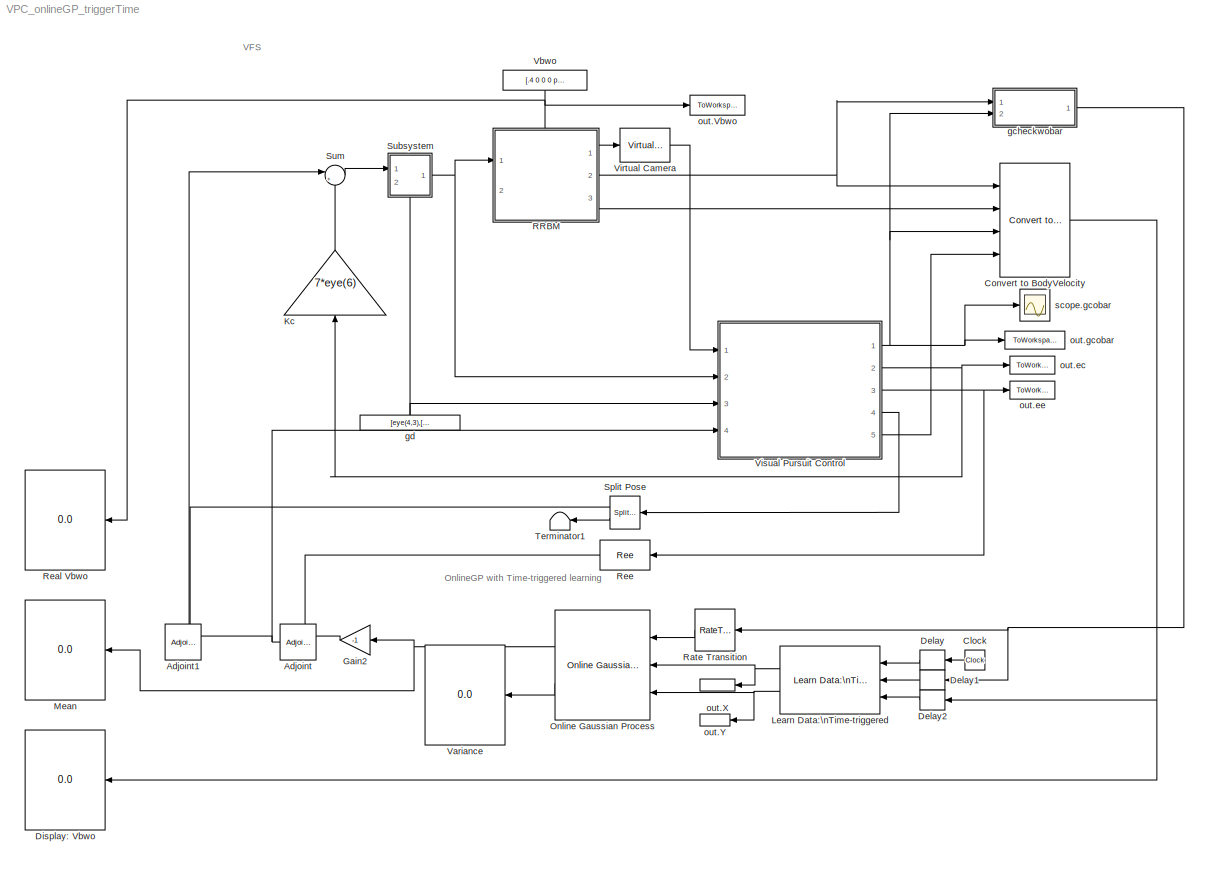
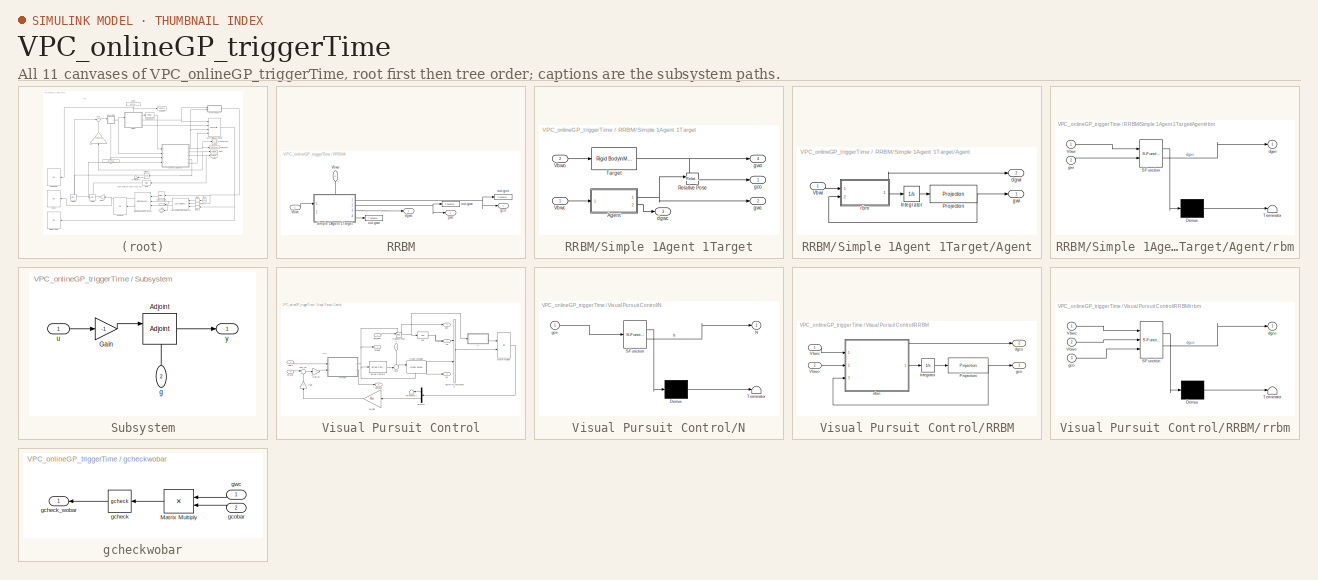
[diagram: thumbnail index - all 11 canvases of the model, root first then tree order]
MODEL VPC_onlineGP_triggerTime
KIND model
BLOCK [Reference] Adjoint  REF=simlib_vpc_basic/Adjoint
  Ports = [2, 1]
  RTWMemSecDataConstants = Inherit from model
  RTWMemSecDataInternal = Inherit from model
  RTWMemSecDataParameters = Inherit from model
  RTWMemSecFuncExecute = Inherit from model
  RTWMemSecFuncInitTerm = Inherit from model
  SID = 80
  SourceBlock = simlib_vpc_basic/Adjoint
  SourceProductName = VPC Library
  SourceType = Adjoint Matrix [V1]
  adjointtype = orientation
BLOCK [Reference] Adjoint1  REF=simlib_vpc_basic/Adjoint
  Ports = [2, 1]
  RTWMemSecDataConstants = Inherit from model
  RTWMemSecDataInternal = Inherit from model
  RTWMemSecDataParameters = Inherit from model
  RTWMemSecFuncExecute = Inherit from model
  RTWMemSecFuncInitTerm = Inherit from model
  SID = 93
  SourceBlock = simlib_vpc_basic/Adjoint
  SourceProductName = VPC Library
  SourceType = Adjoint Matrix [V1]
  adjointtype = orientation
BLOCK [Clock] Clock
  NameLocation = top
  SID = 122
BLOCK [Reference] Convert to BodyVelocity  REF=simlib_vpc_coremath/Convert to BodyVelocity
  Ports = [4, 1]
  RTWMemSecDataConstants = Inherit from model
  RTWMemSecDataInternal = Inherit from model
  RTWMemSecDataParameters = Inherit from model
  RTWMemSecFuncExecute = Inherit from model
  RTWMemSecFuncInitTerm = Inherit from model
  SID = 121
  SourceBlock = simlib_vpc_coremath/Convert to BodyVelocity
  SourceProductName = VPC Library
  SourceType = Convert to Body Velocity [V1]
BLOCK [Delay] Delay
  DelayLength = 1
  InputPortMap = u0
  NameLocation = top
  Ports = [1, 1]
  SID = 123
BLOCK [Delay] Delay1
  DelayLength = 1
  InitialCondition = zeros(6,1)
  InputPortMap = u0
  NameLocation = top
  Ports = [1, 1]
  SID = 124
BLOCK [Delay] Delay2
  DelayLength = 1
  InitialCondition = zeros(6,1)
  InputPortMap = u0
  NameLocation = top
  Ports = [1, 1]
  SID = 125
BLOCK [Display] Display: Vbwo
  Decimation = 1
  Ports = [1]
  SID = 134
BLOCK [Gain] Gain2
  Gain = -1
  NameLocation = top
  SID = 92
BLOCK [Gain] Kc
  Gain = 7*eye(6)
  Multiplication = Matrix(K*u) (u vector)
  NameLocation = left
  SID = 54
BLOCK [Reference] Learn Data:\nTime-triggered  REF=simlib_vpc_gp/Learn Data:\nTime-triggered
  M = 10
  Ports = [3, 2]
  RTWMemSecDataConstants = Inherit from model
  RTWMemSecDataInternal = Inherit from model
  RTWMemSecDataParameters = Inherit from model
  RTWMemSecFuncExecute = Inherit from model
  RTWMemSecFuncInitTerm = Inherit from model
  SID = 126
  SourceBlock = simlib_vpc_gp/Learn Data:\nTime-triggered
  SourceProductName = VPC Library
  SourceType = Time-triggered Learning [V1]
  T = 1
  forget_type = oldest
  ts = 0.01
BLOCK [Display] Mean
  Decimation = 1
  Ports = [1]
  SID = 135
BLOCK [Reference] Online Gaussian Process  REF=simlib_vpc_gp/Online Gaussian Process
  Ports = [3, 2]
  RTWMemSecDataConstants = Inherit from model
  RTWMemSecDataInternal = Inherit from model
  RTWMemSecDataParameters = Inherit from model
  RTWMemSecFuncExecute = Inherit from model
  RTWMemSecFuncInitTerm = Inherit from model
  SID = 127
  SourceBlock = simlib_vpc_gp/Online Gaussian Process
  SourceProductName = VPC Library
  SourceType = Online Gaussian Process [V1]
  hyp = [5811173401.07743,21588555449944.6,1,8110042.13413100,7904.61094638263,7904.61094640294,0.200026025926779;60.7489924638542,524.808810512054,1,1.61563170712922,1.71239559901261,1.71239559901241,5.61320776710465e-12;1489.26961783243,49.4500876144320,1,0.324984946298690,0.226613543570055,0.226613543570214,1.82535781762732e-12;0.155449650516185,65.1816809298117,1,38.3822907611281,127.663031081991,127....<+248ch>
  hyp_source = internal
  kernel = Squared Exponential ARD
  sn = 1e-2.*ones(6,1)
  sn_source = internal
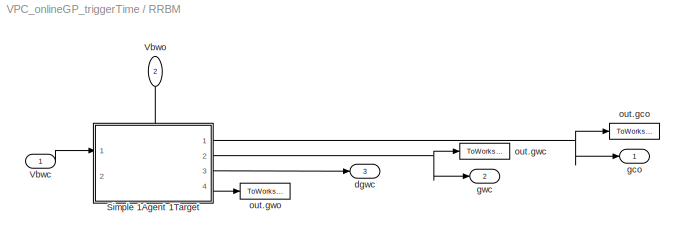
BLOCK [SubSystem] RRBM
  PortSchema = {\"entries\":[{\"content\":{\"sides\":[{\"content\":{\"connectorIds\":[\"In1\"]},\"type\":\"ConnectorPlacement.EquallySpacedRectSide\",\"uuid\":\"ce1006a6-ff18-4db7-ad69-3a60144a672f\"},{\"content\":{\"connectorIds\":[\"Out1\",\"Out2\",\"Out3\"],\"side\":\"RIGHT\"},\"type\":\"ConnectorPlacement.EquallySpacedRectSide\",\"uuid\":\"9f6b7cf2-eb23-4db0-862a-f9244538bf77\"},{\"content\":{\"connectorIds\...<+495ch>
  Ports = [2, 3]
  RequestExecContextInheritance = off
  SID = 71
BLOCK [SubSystem] RRBM/Simple 1Agent 1Target
  MinAlgLoopOccurrences = on
  PortSchema = {\"entries\":[{\"content\":{\"sides\":[{\"content\":{\"connectorIds\":[\"In1\"]},\"type\":\"ConnectorPlacement.EquallySpacedRectSide\",\"uuid\":\"51848c78-49bf-4d69-8138-12848c04a52b\"},{\"content\":{\"connectorIds\":[\"Out1\",\"Out2\",\"Out3\",\"Out4\"],\"side\":\"RIGHT\"},\"type\":\"ConnectorPlacement.EquallySpacedRectSide\",\"uuid\":\"a2771237-d1b3-407b-8d53-6a34779e1c0e\"},{\"content\":{\"conn...<+504ch>
  Ports = [2, 4]
  RTWSystemCode = Reusable function
  RequestExecContextInheritance = off
  SID = 74
BLOCK [SubSystem] RRBM/Simple 1Agent 1Target/Agent
  MinAlgLoopOccurrences = on
  Ports = [1, 2]
  RTWSystemCode = Reusable function
  RequestExecContextInheritance = off
  SID = 74:88
BLOCK [Integrator] RRBM/Simple 1Agent 1Target/Agent/Integrator
  ContinuousStateAttributes = 'pose'
  InitialCondition = g0
  Ports = [1, 1]
  SID = 74:88:34
BLOCK [Reference] RRBM/Simple 1Agent 1Target/Agent/Projection  REF=simlib_vpc_basic/Projection
  Ports = [1, 1]
  RTWMemSecDataConstants = Inherit from model
  RTWMemSecDataInternal = Inherit from model
  RTWMemSecDataParameters = Inherit from model
  RTWMemSecFuncExecute = Inherit from model
  RTWMemSecFuncInitTerm = Inherit from model
  SID = 74:88:66
  SourceBlock = simlib_vpc_basic/Projection
  SourceProductName = VPC Library
  SourceType = Rotation Projection [V1]
  inputtype = pose
  projectiontype = averaging
BLOCK [Inport] RRBM/Simple 1Agent 1Target/Agent/Vbwi
  SID = 74:88:31
BLOCK [Outport] RRBM/Simple 1Agent 1Target/Agent/dgwi
  Port = 2
  SID = 74:88:70
BLOCK [Outport] RRBM/Simple 1Agent 1Target/Agent/gwi
  SID = 74:88:32
BLOCK [SubSystem] RRBM/Simple 1Agent 1Target/Agent/rbm
  ErrorFcn = Stateflow.Translate.translate
  PermitHierarchicalResolution = ExplicitOnly
  Ports = [2, 1]
  RequestExecContextInheritance = off
  SFBlockType = MATLAB Function
  SID = 74:88:35
  TreatAsAtomicUnit = on
BLOCK [Demux] RRBM/Simple 1Agent 1Target/Agent/rbm/ Demux 
  Outputs = 1
  Ports = [1, 1]
  SID = 74:88:35::27
BLOCK [S-Function] RRBM/Simple 1Agent 1Target/Agent/rbm/ SFunction 
  EnableBusSupport = on
  FunctionName = sf_sfun
  PortCounts = [2 2]
  Ports = [2, 2]
  SFcnIsStateOwnerBlock = off
  SFunctionDeploymentMode = off
  SID = 74:88:35::26
  Tag = Stateflow S-Function 4
BLOCK [Terminator] RRBM/Simple 1Agent 1Target/Agent/rbm/ Terminator 
  SID = 74:88:35::28
BLOCK [Inport] RRBM/Simple 1Agent 1Target/Agent/rbm/Vbwi
  SID = 74:88:35::1
BLOCK [Outport] RRBM/Simple 1Agent 1Target/Agent/rbm/dgwi
  SID = 74:88:35::5
BLOCK [Inport] RRBM/Simple 1Agent 1Target/Agent/rbm/gwi
  Port = 2
  SID = 74:88:35::22
BLOCK [Reference] RRBM/Simple 1Agent 1Target/Relative Pose  REF=simlib_vpc_coremath/Relative Pose
  Ports = [2, 1]
  RTWMemSecDataConstants = Inherit from model
  RTWMemSecDataInternal = Inherit from model
  RTWMemSecDataParameters = Inherit from model
  RTWMemSecFuncExecute = Inherit from model
  RTWMemSecFuncInitTerm = Inherit from model
  SID = 74:89
  SourceBlock = simlib_vpc_coremath/Relative Pose
  SourceProductName = VPC Library
  SourceType = Relative Pose Block [V1]
BLOCK [Reference] RRBM/Simple 1Agent 1Target/Target  REF=simlib_vpc_basic/Rigid Body\nMotion
  Ports = [1, 1]
  RTWMemSecDataConstants = Inherit from model
  RTWMemSecDataInternal = Inherit from model
  RTWMemSecDataParameters = Inherit from model
  RTWMemSecFuncExecute = Inherit from model
  RTWMemSecFuncInitTerm = Inherit from model
  SID = 74:90
  SourceBlock = simlib_vpc_basic/Rigid Body\nMotion
  SourceProductName = VPC Library
  SourceType = Rigid Body Motion Block [V1]
  agentnumber = 1
  g0 = gwo0
  projection = on
  rbmtype = target
  show_dg = off
BLOCK [Inport] RRBM/Simple 1Agent 1Target/Vbwc
  SID = 74:86
BLOCK [Inport] RRBM/Simple 1Agent 1Target/Vbwo
  Port = 2
  SID = 74:87
BLOCK [Outport] RRBM/Simple 1Agent 1Target/dgwc
  Port = 3
  SID = 74:114
BLOCK [Outport] RRBM/Simple 1Agent 1Target/gco
  SID = 74:91
BLOCK [Outport] RRBM/Simple 1Agent 1Target/gwc
  Port = 2
  SID = 74:108
BLOCK [Outport] RRBM/Simple 1Agent 1Target/gwo
  Port = 4
  SID = 74:109
BLOCK [Inport] RRBM/Vbwc
  SID = 72
BLOCK [Inport] RRBM/Vbwo
  NameLocation = left
  Port = 2
  SID = 73
BLOCK [Outport] RRBM/dgwc
  NameLocation = right
  Port = 3
  SID = 120
BLOCK [Outport] RRBM/gco
  NameLocation = right
  SID = 78
BLOCK [Outport] RRBM/gwc
  NameLocation = right
  Port = 2
  SID = 79
BLOCK [ToWorkspace] RRBM/out.gco
  FixptAsFi = on
  MaxDataPoints = inf
  NameLocation = right
  Ports = [1]
  SID = 75
  SampleTime = -1
  SaveFormat = Structure With Time
  VariableName = gco
BLOCK [ToWorkspace] RRBM/out.gwc
  FixptAsFi = on
  MaxDataPoints = inf
  NameLocation = right
  Ports = [1]
  SID = 76
  SampleTime = -1
  SaveFormat = Structure With Time
  VariableName = gwc
BLOCK [ToWorkspace] RRBM/out.gwo
  FixptAsFi = on
  MaxDataPoints = inf
  NameLocation = right
  Ports = [1]
  SID = 77
  SampleTime = -1
  SaveFormat = Structure With Time
  VariableName = gwo
BLOCK [RateTransition] Rate Transition
  NameLocation = top
  OutPortSampleTime = 0.01
  SID = 128
BLOCK [Display] Real Vbwo
  Decimation = 1
  Ports = [1]
  SID = 136
BLOCK [Reference] Ree  REF=simlib_vpc_coremath/Ree
  NameLocation = top
  Ports = [1, 1]
  RTWMemSecDataConstants = Inherit from model
  RTWMemSecDataInternal = Inherit from model
  RTWMemSecDataParameters = Inherit from model
  RTWMemSecFuncExecute = Inherit from model
  RTWMemSecFuncInitTerm = Inherit from model
  SID = 81
  SourceBlock = simlib_vpc_coremath/Ree
  SourceProductName = VPC Library
  SourceType = Rotation Estimation Error [V1]
BLOCK [Reference] Split Pose  REF=simlib_vpc_coremath/Split Pose
  NameLocation = top
  Ports = [1, 2]
  RTWMemSecDataConstants = Inherit from model
  RTWMemSecDataInternal = Inherit from model
  RTWMemSecDataParameters = Inherit from model
  RTWMemSecFuncExecute = Inherit from model
  RTWMemSecFuncInitTerm = Inherit from model
  SID = 98
  SourceBlock = simlib_vpc_coremath/Split Pose
  SourceProductName = VPC Library
  SourceType = Split pose [V1]
BLOCK [SubSystem] Subsystem
  PortSchema = {\"entries\":[{\"content\":{\"sides\":[{\"content\":{\"connectorIds\":[\"In1\"]},\"type\":\"ConnectorPlacement.EquallySpacedRectSide\",\"uuid\":\"72e68008-5c4a-43a9-a560-64c6a31a0c08\"},{\"content\":{\"connectorIds\":[\"Out1\"],\"side\":\"RIGHT\"},\"type\":\"ConnectorPlacement.EquallySpacedRectSide\",\"uuid\":\"da07f5ff-2b2c-4c55-a2f2-34e133777503\"},{\"content\":{\"connectorIds\":[],\"side\":\"TO...<+637ch>
  Ports = [2, 1]
  RequestExecContextInheritance = off
  SID = 65
BLOCK [Reference] Subsystem/Adjoint  REF=simlib_vpc_basic/Adjoint
  NameLocation = top
  Ports = [2, 1]
  RTWMemSecDataConstants = Inherit from model
  RTWMemSecDataInternal = Inherit from model
  RTWMemSecDataParameters = Inherit from model
  RTWMemSecFuncExecute = Inherit from model
  RTWMemSecFuncInitTerm = Inherit from model
  SID = 41
  SourceBlock = simlib_vpc_basic/Adjoint
  SourceProductName = VPC Library
  SourceType = Adjoint Matrix [V1]
  adjointtype = pose
BLOCK [Gain] Subsystem/Gain
  Gain = -1
  SID = 42
BLOCK [Inport] Subsystem/g
  NameLocation = right
  Port = 2
  SID = 67
BLOCK [Inport] Subsystem/u
  SID = 66
BLOCK [Outport] Subsystem/y
  SID = 68
BLOCK [Sum] Sum
  Inputs = |+-
  Ports = [2, 1]
  SID = 94
BLOCK [Terminator] Terminator1
  SID = 99
BLOCK [Display] Variance
  Decimation = 1
  Ports = [1]
  SID = 133
BLOCK [Constant] Vbwo
  NameLocation = right
  SID = 18
  Value = [.4 0 0 0 pi/6 0]
BLOCK [Reference] Virtual Camera  REF=simlib_vpc_basic/Virtual Camera
  NameLocation = top
  Ports = [1, 1]
  RTWMemSecDataConstants = Inherit from model
  RTWMemSecDataInternal = Inherit from model
  RTWMemSecDataParameters = Inherit from model
  RTWMemSecFuncExecute = Inherit from model
  RTWMemSecFuncInitTerm = Inherit from model
  SID = 56
  SourceBlock = simlib_vpc_basic/Virtual Camera
  SourceProductName = VPC Library
  SourceType = Virtual Camera model [V1]
  camtype = Pinhole
  lambda = lambda
  po = po
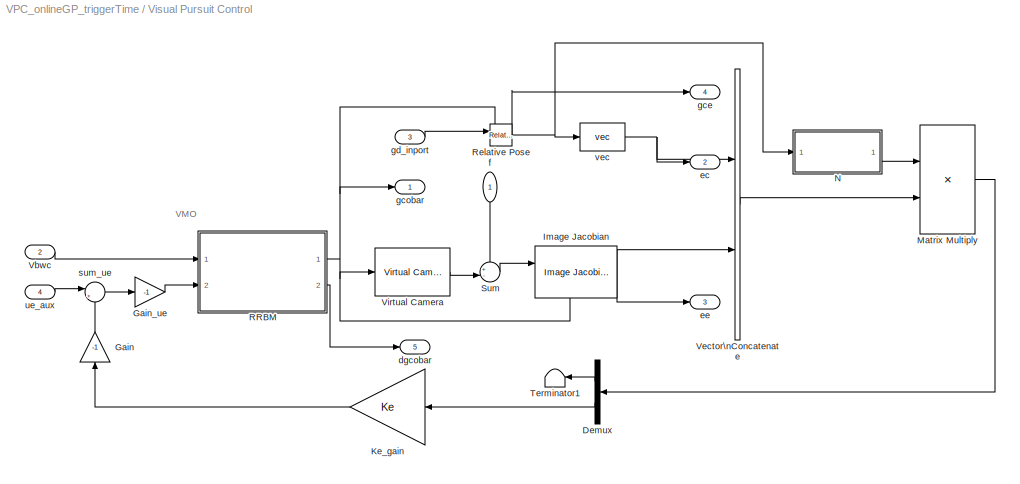
BLOCK [SubSystem] Visual Pursuit Control
  MinAlgLoopOccurrences = on
  Ports = [4, 5]
  RTWSystemCode = Reusable function
  RequestExecContextInheritance = off
  SID = 59
BLOCK [Demux] Visual Pursuit Control/Demux
  NameLocation = top
  Outputs = 2
  Ports = [1, 2]
  SID = 59:433
BLOCK [Gain] Visual Pursuit Control/Gain
  Gain = -1
  NameLocation = right
  SID = 59:188
BLOCK [Gain] Visual Pursuit Control/Gain_ue
  Gain = -1
  SID = 59:420
BLOCK [Reference] Visual Pursuit Control/Image Jacobian  REF=simlib_vpc_basic/Image Jacobian
  NameLocation = top
  Ports = [2, 1]
  RTWMemSecDataConstants = Inherit from model
  RTWMemSecDataInternal = Inherit from model
  RTWMemSecDataParameters = Inherit from model
  RTWMemSecFuncExecute = Inherit from model
  RTWMemSecFuncInitTerm = Inherit from model
  SID = 59:421
  SourceBlock = simlib_vpc_basic/Image Jacobian
  SourceProductName = VPC Library
  SourceType = Image Jacobian [V1]
  lambda = lambda
  po = fo
BLOCK [Gain] Visual Pursuit Control/Ke_gain
  Gain = Ke
  Multiplication = Matrix(K*u) (u vector)
  SID = 59:538
BLOCK [Product] Visual Pursuit Control/Matrix Multiply
  Multiplication = Matrix(*)
  Ports = [2, 1]
  SID = 59:166
BLOCK [SubSystem] Visual Pursuit Control/N
  ErrorFcn = Stateflow.Translate.translate
  PermitHierarchicalResolution = ExplicitOnly
  Ports = [1, 1]
  RequestExecContextInheritance = off
  SFBlockType = MATLAB Function
  SID = 59:169
  TreatAsAtomicUnit = on
BLOCK [Demux] Visual Pursuit Control/N/ Demux 
  Outputs = 1
  Ports = [1, 1]
  SID = 59:169::30
BLOCK [S-Function] Visual Pursuit Control/N/ SFunction 
  EnableBusSupport = on
  FunctionName = sf_sfun
  PortCounts = [1 2]
  Ports = [1, 2]
  SFcnIsStateOwnerBlock = off
  SFunctionDeploymentMode = off
  SID = 59:169::29
  Tag = Stateflow S-Function 8
BLOCK [Terminator] Visual Pursuit Control/N/ Terminator 
  SID = 59:169::31
BLOCK [Outport] Visual Pursuit Control/N/N
  SID = 59:169::5
BLOCK [Inport] Visual Pursuit Control/N/gce
  SID = 59:169::1
BLOCK [SubSystem] Visual Pursuit Control/RRBM
  MinAlgLoopOccurrences = on
  Ports = [2, 2]
  RTWSystemCode = Reusable function
  RequestExecContextInheritance = off
  SID = 59:428
BLOCK [Integrator] Visual Pursuit Control/RRBM/Integrator
  InitialCondition = gco0
  Ports = [1, 1]
  SID = 59:428:78
BLOCK [Reference] Visual Pursuit Control/RRBM/Projection  REF=simlib_vpc_basic/Projection
  Ports = [1, 1]
  RTWMemSecDataConstants = Inherit from model
  RTWMemSecDataInternal = Inherit from model
  RTWMemSecDataParameters = Inherit from model
  RTWMemSecFuncExecute = Inherit from model
  RTWMemSecFuncInitTerm = Inherit from model
  SID = 59:428:82
  SourceBlock = simlib_vpc_basic/Projection
  SourceProductName = VPC Library
  SourceType = Rotation Projection [V1]
  inputtype = pose
  projectiontype = averaging
BLOCK [Inport] Visual Pursuit Control/RRBM/Vbwc
  SID = 59:428:47
BLOCK [Inport] Visual Pursuit Control/RRBM/Vbwo
  Port = 2
  SID = 59:428:49
BLOCK [Outport] Visual Pursuit Control/RRBM/dgco
  Port = 2
  SID = 59:428:89
BLOCK [Outport] Visual Pursuit Control/RRBM/gco
  SID = 59:428:48
BLOCK [SubSystem] Visual Pursuit Control/RRBM/rrbm
  ErrorFcn = Stateflow.Translate.translate
  PermitHierarchicalResolution = ExplicitOnly
  Ports = [3, 1]
  RequestExecContextInheritance = off
  SFBlockType = MATLAB Function
  SID = 59:428:77
  TreatAsAtomicUnit = on
BLOCK [Demux] Visual Pursuit Control/RRBM/rrbm/ Demux 
  Outputs = 1
  Ports = [1, 1]
  SID = 59:428:77::28
BLOCK [S-Function] Visual Pursuit Control/RRBM/rrbm/ SFunction 
  EnableBusSupport = on
  FunctionName = sf_sfun
  PortCounts = [3 2]
  Ports = [3, 2]
  SFcnIsStateOwnerBlock = off
  SFunctionDeploymentMode = off
  SID = 59:428:77::27
  Tag = Stateflow S-Function 7
BLOCK [Terminator] Visual Pursuit Control/RRBM/rrbm/ Terminator 
  SID = 59:428:77::29
BLOCK [Inport] Visual Pursuit Control/RRBM/rrbm/Vbwc
  SID = 59:428:77::22
BLOCK [Inport] Visual Pursuit Control/RRBM/rrbm/Vbwo
  Port = 2
  SID = 59:428:77::1
BLOCK [Outport] Visual Pursuit Control/RRBM/rrbm/dgco
  SID = 59:428:77::5
BLOCK [Inport] Visual Pursuit Control/RRBM/rrbm/gco
  Port = 3
  SID = 59:428:77::23
BLOCK [Reference] Visual Pursuit Control/Relative Pose  REF=simlib_vpc_coremath/Relative Pose
  Ports = [2, 1]
  RTWMemSecDataConstants = Inherit from model
  RTWMemSecDataInternal = Inherit from model
  RTWMemSecDataParameters = Inherit from model
  RTWMemSecFuncExecute = Inherit from model
  RTWMemSecFuncInitTerm = Inherit from model
  SID = 59:163
  SourceBlock = simlib_vpc_coremath/Relative Pose
  SourceProductName = VPC Library
  SourceType = Relative Pose Block [V1]
BLOCK [Sum] Visual Pursuit Control/Sum
  Inputs = +-|
  Ports = [2, 1]
  SID = 59:423
BLOCK [Terminator] Visual Pursuit Control/Terminator1
  NameLocation = top
  SID = 59:434
BLOCK [Inport] Visual Pursuit Control/Vbwc
  Port = 2
  SID = 59:160
BLOCK [Concatenate] Visual Pursuit Control/Vector\nConcatenate
  Ports = [2, 1]
  SID = 59:164
BLOCK [Reference] Visual Pursuit Control/Virtual Camera  REF=simlib_vpc_basic/Virtual Camera
  Ports = [1, 1]
  RTWMemSecDataConstants = Inherit from model
  RTWMemSecDataInternal = Inherit from model
  RTWMemSecDataParameters = Inherit from model
  RTWMemSecFuncExecute = Inherit from model
  RTWMemSecFuncInitTerm = Inherit from model
  SID = 59:430
  SourceBlock = simlib_vpc_basic/Virtual Camera
  SourceProductName = VPC Library
  SourceType = Virtual Camera model [V1]
  camtype = Pinhole
  lambda = lambda
  po = fo
BLOCK [Outport] Visual Pursuit Control/dgcobar
  Port = 5
  SID = 59:558
BLOCK [Outport] Visual Pursuit Control/ec
  Port = 2
  SID = 59:435
BLOCK [Outport] Visual Pursuit Control/ee
  Port = 3
  SID = 59:556
BLOCK [Inport] Visual Pursuit Control/f
  NameLocation = left
  SID = 59:156
BLOCK [Outport] Visual Pursuit Control/gce
  Port = 4
  SID = 59:557
BLOCK [Outport] Visual Pursuit Control/gcobar
  SID = 59:157
BLOCK [Inport] Visual Pursuit Control/gd_inport
  Port = 3
  SID = 59:553
BLOCK [Sum] Visual Pursuit Control/sum_ue
  Inputs = |++
  Ports = [2, 1]
  SID = 59:555
BLOCK [Inport] Visual Pursuit Control/ue_aux
  Port = 4
  SID = 59:554
BLOCK [Reference] Visual Pursuit Control/vec  REF=simlib_vpc_coremath/vec
  Ports = [1, 1]
  RTWMemSecDataConstants = Inherit from model
  RTWMemSecDataInternal = Inherit from model
  RTWMemSecDataParameters = Inherit from model
  RTWMemSecFuncExecute = Inherit from model
  RTWMemSecFuncInitTerm = Inherit from model
  SID = 59:170
  SourceBlock = simlib_vpc_coremath/vec
  SourceProductName = VPC Library
  SourceType = Vec Transform [V1]
BLOCK [SubSystem] gcheckwobar
  Ports = [2, 1]
  RequestExecContextInheritance = off
  SID = 83
BLOCK [Product] gcheckwobar/Matrix Multiply
  Multiplication = Matrix(*)
  NameLocation = top
  Ports = [2, 1]
  SID = 86
BLOCK [Reference] gcheckwobar/gcheck  REF=simlib_vpc_coremath/gcheck
  NameLocation = top
  Ports = [1, 1]
  RTWMemSecDataConstants = Inherit from model
  RTWMemSecDataInternal = Inherit from model
  RTWMemSecDataParameters = Inherit from model
  RTWMemSecFuncExecute = Inherit from model
  RTWMemSecFuncInitTerm = Inherit from model
  SID = 87
  SourceBlock = simlib_vpc_coremath/gcheck
  SourceProductName = VPC Library
  SourceType = Check Transform [V1]
BLOCK [Outport] gcheckwobar/gcheck_wobar
  SID = 88
BLOCK [Inport] gcheckwobar/gcobar
  NameLocation = right
  Port = 2
  SID = 85
BLOCK [Inport] gcheckwobar/gwc
  NameLocation = right
  SID = 84
BLOCK [Constant] gd
  NameLocation = right
  SID = 47
  Value = [eye(4,3),[0 0 2 1]']
BLOCK [ToWorkspace] out.Vbwo
  FixptAsFi = on
  MaxDataPoints = inf
  NameLocation = right
  Ports = [1]
  SID = 102
  SampleTime = -1
  SaveFormat = Structure With Time
  VariableName = Vbwo
BLOCK [ToWorkspace] out.X
  FixptAsFi = on
  MaxDataPoints = inf
  NameLocation = left
  Ports = [1]
  SID = 129
  SampleTime = -1
  SaveFormat = Structure With Time
  VariableName = X
BLOCK [ToWorkspace] out.Y
  FixptAsFi = on
  MaxDataPoints = inf
  NameLocation = left
  Ports = [1]
  SID = 130
  SampleTime = -1
  SaveFormat = Structure With Time
  VariableName = Y
BLOCK [ToWorkspace] out.ec
  FixptAsFi = on
  MaxDataPoints = inf
  NameLocation = right
  Ports = [1]
  SID = 45
  SampleTime = -1
  SaveFormat = Structure With Time
  VariableName = ec
BLOCK [ToWorkspace] out.ee
  FixptAsFi = on
  MaxDataPoints = inf
  NameLocation = right
  Ports = [1]
  SID = 46
  SampleTime = -1
  SaveFormat = Structure With Time
  VariableName = ee
BLOCK [ToWorkspace] out.gcobar
  FixptAsFi = on
  MaxDataPoints = inf
  NameLocation = right
  Ports = [1]
  SID = 31
  SampleTime = -1
  SaveFormat = Structure With Time
  VariableName = gcobar
BLOCK [Scope] scope.gcobar
  Floating = off
  NameLocation = right
  NumInputPorts = 1
  Ports = [1]
  SID = 38
  ScopeSpecificationString = Simulink.scopes.TimeScopeBlockCfg('CurrentConfiguration', extmgr.ConfigurationSet(extmgr.Configuration('Core','General UI',true),extmgr.Configuration('Core','Source UI',true),extmgr.Configuration('Sources','WiredSimulink',true),extmgr.Configuration('Visuals','Time Domain',true,'SerializedDisplays',{struct('MinYLimReal','-0.4173','MaxYLimReal','2.21403','YLabelReal','','MinYLimMag','0.00000','MaxYL...<+1835ch>
ANNOTATION (root): \n \n \n \n \n \n \n \n $\\check{\\bar{g}}_{wo}$ \n \n \n \n
ANNOTATION (root): \n \n \n \n \n \n \n \n Note: \n \n \n \n \n \n Due to how atomic subsystems work, these library links had to be disabled: \n \n \n - VPC block \n \n \n - Agent block within Simple1Agent1Target block \n \n \n \n \n \n The reason is that with showing the derivative \n $\\dot{g}$ \n on the output of these blocks result in an algebraic loop error that Simulink cannot resolve. \n \n \n \n \n \n Howeve...<+249ch>
ANNOTATION (root): \n \n \n \n \n \n \n \n $R_{ce}$ \n \n \n \n
ANNOTATION (root): OnlineGP with Time-triggered learning
ANNOTATION (root): VFS\n
ANNOTATION Visual Pursuit Control: \n \n \n \n \n \n \n \n $\\mathbf{\\nu}$ \n \n \n \n
ANNOTATION Visual Pursuit Control: \n \n \n \n \n \n \n \n $\\mathbf{e}$ \n \n \n \n
ANNOTATION Visual Pursuit Control: \n \n \n \n \n \n \n \n $\\mathbf{e}_c$ \n \n \n \n
ANNOTATION Visual Pursuit Control: \n \n \n \n \n \n \n \n $\\mathbf{e}_e$ \n \n \n \n
ANNOTATION Visual Pursuit Control: \n \n \n \n \n \n \n \n $\\mathbf{g}_{ce}$ \n \n \n \n
ANNOTATION Visual Pursuit Control: VMO
ANNOTATION gcheckwobar: \n \n \n \n \n \n \n \n $\\bar{g}_{wo}$ \n \n \n \n
ANNOTATION gcheckwobar: \n \n \n \n \n \n \n \n $\\check{\\bar{g}}_{wo}$ \n \n \n \n
LINE Adjoint1:1 -> Sum:1
NET Adjoint:1 -> Adjoint1:1, Visual Pursuit Control:4
LINE Clock:1 -> Delay:1
NET Convert to BodyVelocity:1 -> Delay2:1, Display: Vbwo:1
LINE Delay1:1 -> Learn Data:\nTime-triggered:2
LINE Delay2:1 -> Learn Data:\nTime-triggered:3
LINE Delay:1 -> Learn Data:\nTime-triggered:1
LINE Gain2:1 -> Adjoint:1
LINE Kc:1 -> Sum:2
NET Learn Data:\nTime-triggered:1 -> Online Gaussian Process:2, out.X:1
NET Learn Data:\nTime-triggered:2 -> Online Gaussian Process:3, out.Y:1
NET Online Gaussian Process:1 -> Gain2:1, Mean:1
LINE Online Gaussian Process:2 -> Variance:1
LINE RRBM/Simple 1Agent 1Target/Agent/Integrator:1 -> RRBM/Simple 1Agent 1Target/Agent/Projection:1
NET RRBM/Simple 1Agent 1Target/Agent/Projection:1 -> RRBM/Simple 1Agent 1Target/Agent/gwi:1, RRBM/Simple 1Agent 1Target/Agent/rbm:2
LINE RRBM/Simple 1Agent 1Target/Agent/Vbwi:1 -> RRBM/Simple 1Agent 1Target/Agent/rbm:1
LINE RRBM/Simple 1Agent 1Target/Agent/rbm/ Demux :1 -> RRBM/Simple 1Agent 1Target/Agent/rbm/ Terminator :1
LINE RRBM/Simple 1Agent 1Target/Agent/rbm/ SFunction :1 -> RRBM/Simple 1Agent 1Target/Agent/rbm/ Demux :1
LINE RRBM/Simple 1Agent 1Target/Agent/rbm/ SFunction :2 -> RRBM/Simple 1Agent 1Target/Agent/rbm/dgwi:1
LINE RRBM/Simple 1Agent 1Target/Agent/rbm/Vbwi:1 -> RRBM/Simple 1Agent 1Target/Agent/rbm/ SFunction :1
LINE RRBM/Simple 1Agent 1Target/Agent/rbm/gwi:1 -> RRBM/Simple 1Agent 1Target/Agent/rbm/ SFunction :2
NET RRBM/Simple 1Agent 1Target/Agent/rbm:1 -> RRBM/Simple 1Agent 1Target/Agent/Integrator:1, RRBM/Simple 1Agent 1Target/Agent/dgwi:1
NET RRBM/Simple 1Agent 1Target/Agent:1 -> RRBM/Simple 1Agent 1Target/Relative Pose:1, RRBM/Simple 1Agent 1Target/gwc:1
LINE RRBM/Simple 1Agent 1Target/Agent:2 -> RRBM/Simple 1Agent 1Target/dgwc:1
LINE RRBM/Simple 1Agent 1Target/Relative Pose:1 -> RRBM/Simple 1Agent 1Target/gco:1
NET RRBM/Simple 1Agent 1Target/Target:1 -> RRBM/Simple 1Agent 1Target/Relative Pose:2, RRBM/Simple 1Agent 1Target/gwo:1
LINE RRBM/Simple 1Agent 1Target/Vbwc:1 -> RRBM/Simple 1Agent 1Target/Agent:1
LINE RRBM/Simple 1Agent 1Target/Vbwo:1 -> RRBM/Simple 1Agent 1Target/Target:1
NET RRBM/Simple 1Agent 1Target:1 -> RRBM/gco:1, RRBM/out.gco:1
NET RRBM/Simple 1Agent 1Target:2 -> RRBM/gwc:1, RRBM/out.gwc:1
LINE RRBM/Simple 1Agent 1Target:3 -> RRBM/dgwc:1
LINE RRBM/Simple 1Agent 1Target:4 -> RRBM/out.gwo:1
LINE RRBM/Vbwc:1 -> RRBM/Simple 1Agent 1Target:1
LINE RRBM/Vbwo:1 -> RRBM/Simple 1Agent 1Target:2
LINE RRBM:1 -> Virtual Camera:1
NET RRBM:2 -> Convert to BodyVelocity:1, gcheckwobar:1
LINE RRBM:3 -> Convert to BodyVelocity:2
LINE Rate Transition:1 -> Online Gaussian Process:1
LINE Ree:1 -> Adjoint:2
LINE Split Pose:1 -> Adjoint1:2
LINE Split Pose:2 -> Terminator1:1
LINE Subsystem/Adjoint:1 -> Subsystem/y:1
LINE Subsystem/Gain:1 -> Subsystem/Adjoint:1
LINE Subsystem/g:1 -> Subsystem/Adjoint:2
LINE Subsystem/u:1 -> Subsystem/Gain:1
NET Subsystem:1 -> RRBM:1, Visual Pursuit Control:2
LINE Sum:1 -> Subsystem:1
NET Vbwo:1 -> RRBM:2, Real Vbwo:1, out.Vbwo:1
LINE Virtual Camera:1 -> Visual Pursuit Control:1
LINE Visual Pursuit Control/Demux:1 -> Visual Pursuit Control/Terminator1:1
LINE Visual Pursuit Control/Demux:2 -> Visual Pursuit Control/Ke_gain:1
LINE Visual Pursuit Control/Gain:1 -> Visual Pursuit Control/sum_ue:2
LINE Visual Pursuit Control/Gain_ue:1 -> Visual Pursuit Control/RRBM:2
NET Visual Pursuit Control/Image Jacobian:1 -> Visual Pursuit Control/Vector\nConcatenate:2, Visual Pursuit Control/ee:1
LINE Visual Pursuit Control/Ke_gain:1 -> Visual Pursuit Control/Gain:1
LINE Visual Pursuit Control/Matrix Multiply:1 -> Visual Pursuit Control/Demux:1
LINE Visual Pursuit Control/N/ Demux :1 -> Visual Pursuit Control/N/ Terminator :1
LINE Visual Pursuit Control/N/ SFunction :1 -> Visual Pursuit Control/N/ Demux :1
LINE Visual Pursuit Control/N/ SFunction :2 -> Visual Pursuit Control/N/N:1
LINE Visual Pursuit Control/N/gce:1 -> Visual Pursuit Control/N/ SFunction :1
LINE Visual Pursuit Control/N:1 -> Visual Pursuit Control/Matrix Multiply:1
LINE Visual Pursuit Control/RRBM/Integrator:1 -> Visual Pursuit Control/RRBM/Projection:1
NET Visual Pursuit Control/RRBM/Projection:1 -> Visual Pursuit Control/RRBM/gco:1, Visual Pursuit Control/RRBM/rrbm:3
LINE Visual Pursuit Control/RRBM/Vbwc:1 -> Visual Pursuit Control/RRBM/rrbm:1
LINE Visual Pursuit Control/RRBM/Vbwo:1 -> Visual Pursuit Control/RRBM/rrbm:2
LINE Visual Pursuit Control/RRBM/rrbm/ Demux :1 -> Visual Pursuit Control/RRBM/rrbm/ Terminator :1
LINE Visual Pursuit Control/RRBM/rrbm/ SFunction :1 -> Visual Pursuit Control/RRBM/rrbm/ Demux :1
LINE Visual Pursuit Control/RRBM/rrbm/ SFunction :2 -> Visual Pursuit Control/RRBM/rrbm/dgco:1
LINE Visual Pursuit Control/RRBM/rrbm/Vbwc:1 -> Visual Pursuit Control/RRBM/rrbm/ SFunction :1
LINE Visual Pursuit Control/RRBM/rrbm/Vbwo:1 -> Visual Pursuit Control/RRBM/rrbm/ SFunction :2
LINE Visual Pursuit Control/RRBM/rrbm/gco:1 -> Visual Pursuit Control/RRBM/rrbm/ SFunction :3
NET Visual Pursuit Control/RRBM/rrbm:1 -> Visual Pursuit Control/RRBM/Integrator:1, Visual Pursuit Control/RRBM/dgco:1
NET Visual Pursuit Control/RRBM:1 -> Visual Pursuit Control/Image Jacobian:2, Visual Pursuit Control/Relative Pose:2, Visual Pursuit Control/Virtual Camera:1, Visual Pursuit Control/gcobar:1
LINE Visual Pursuit Control/RRBM:2 -> Visual Pursuit Control/dgcobar:1
NET Visual Pursuit Control/Relative Pose:1 -> Visual Pursuit Control/N:1, Visual Pursuit Control/gce:1, Visual Pursuit Control/vec:1
LINE Visual Pursuit Control/Sum:1 -> Visual Pursuit Control/Image Jacobian:1
LINE Visual Pursuit Control/Vbwc:1 -> Visual Pursuit Control/RRBM:1
LINE Visual Pursuit Control/Vector\nConcatenate:1 -> Visual Pursuit Control/Matrix Multiply:2
LINE Visual Pursuit Control/Virtual Camera:1 -> Visual Pursuit Control/Sum:2
LINE Visual Pursuit Control/f:1 -> Visual Pursuit Control/Sum:1
LINE Visual Pursuit Control/gd_inport:1 -> Visual Pursuit Control/Relative Pose:1
LINE Visual Pursuit Control/sum_ue:1 -> Visual Pursuit Control/Gain_ue:1
LINE Visual Pursuit Control/ue_aux:1 -> Visual Pursuit Control/sum_ue:1
NET Visual Pursuit Control/vec:1 -> Visual Pursuit Control/Vector\nConcatenate:1, Visual Pursuit Control/ec:1
NET Visual Pursuit Control:1 -> Convert to BodyVelocity:3, gcheckwobar:2, out.gcobar:1, scope.gcobar:1
NET Visual Pursuit Control:2 -> Kc:1, out.ec:1
NET Visual Pursuit Control:3 -> Ree:1, out.ee:1
LINE Visual Pursuit Control:4 -> Split Pose:1
LINE Visual Pursuit Control:5 -> Convert to BodyVelocity:4
LINE gcheckwobar/Matrix Multiply:1 -> gcheckwobar/gcheck:1
LINE gcheckwobar/gcheck:1 -> gcheckwobar/gcheck_wobar:1
LINE gcheckwobar/gcobar:1 -> gcheckwobar/Matrix Multiply:2
LINE gcheckwobar/gwc:1 -> gcheckwobar/Matrix Multiply:1
NET gcheckwobar:1 -> Delay1:1, Rate Transition:1
NET gd:1 -> Subsystem:2, Visual Pursuit Control:3
note: NET lines group one-source signal fan-out (src -> all destinations, sorted); 1:1 wires keep LINE
CHART RRBM/Simple 1Agent 1Target/Agent/rbm states=1 transitions=1
  STATE_LABEL 'eML_blk_kernel()'
CHART Visual Pursuit Control/RRBM/rrbm states=1 transitions=1
  STATE_LABEL 'eML_blk_kernel()'
CHART Visual Pursuit Control/N states=1 transitions=1
  STATE_LABEL 'eML_blk_kernel()'
